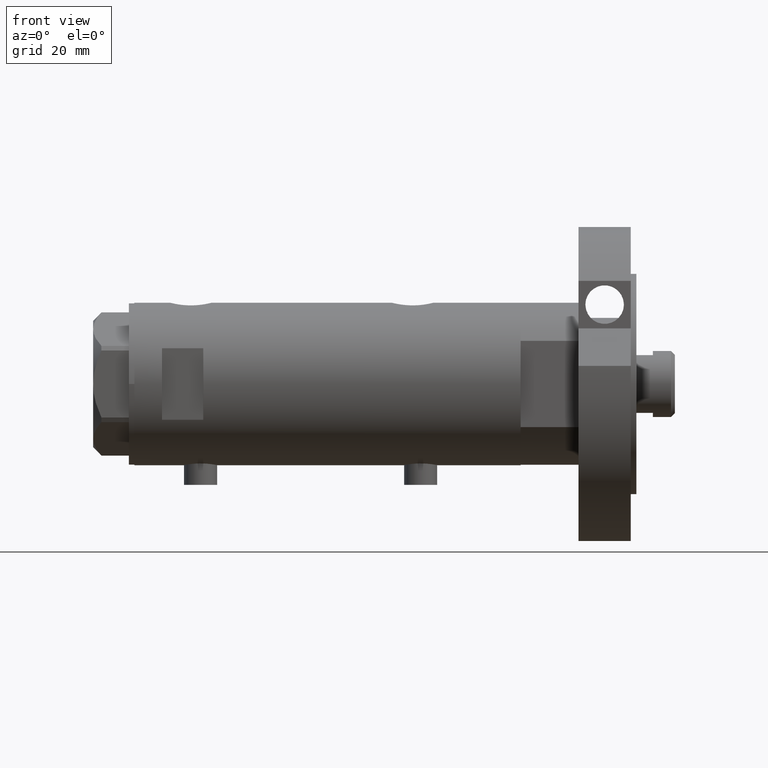
[diagram: clean part render]
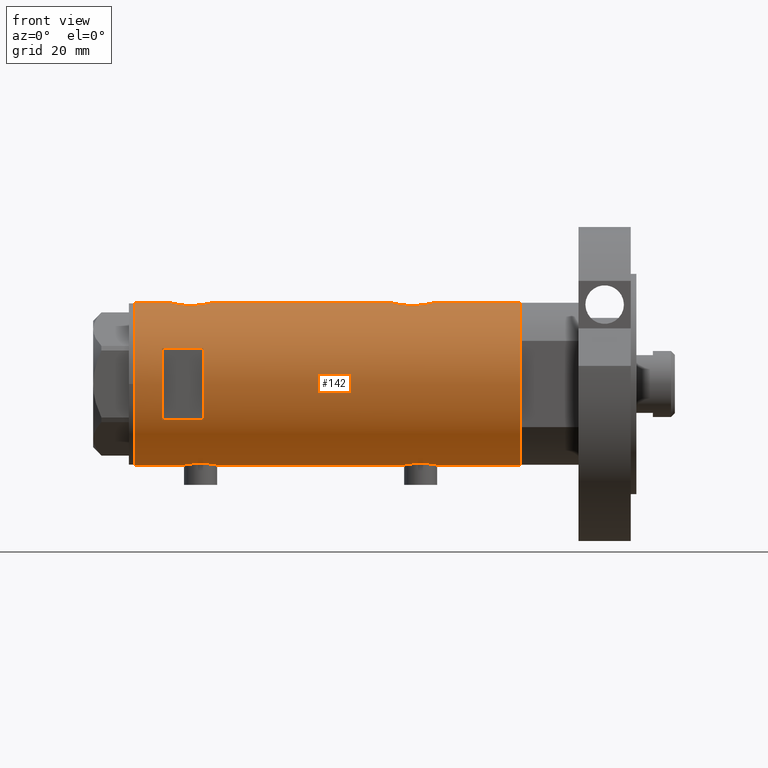
[diagram: same view with one face highlighted and labeled with its STEP entity id]
A machine part, front view. The second image highlights one B-rep face of the part: STEP entity #142.
In plain terms, the highlighted cylindrical surface (partial cylindrical patch) has radius 29.5 mm, axis along (-1, -0, 0).
Its self-contained STEP definition (entity closure, byte-faithful):
#8 = DIRECTION ( 'NONE',  ( 0.000000000000000000, 0.000000000000000000, 1.000000000000000000 ) ) ;
#13 = EDGE_LOOP ( 'NONE', ( #5998, #6013, #404, #3155, #5965, #733, #785, #2132, #2448, #4580, #1994, #4104 ) ) ;
#24 = CARTESIAN_POINT ( 'NONE',  ( 29.08294968506023537, -4.955368226349206040, 55.25096718198464885 ) ) ;
#37 = CARTESIAN_POINT ( 'NONE',  ( -28.91427970886710597, -5.849862889315913250, 43.89006866871147849 ) ) ;
#47 = CARTESIAN_POINT ( 'NONE',  ( 28.86327882047615034, -6.097569254709688913, 53.97367090911448173 ) ) ;
#53 = CARTESIAN_POINT ( 'NONE',  ( -29.46613381094001483, -1.427468570127968350, -27.71172459459601001 ) ) ;
#76 = DIRECTION ( 'NONE',  ( -1.000000000000000000, 0.000000000000000000, 0.000000000000000000 ) ) ;
#77 = CARTESIAN_POINT ( 'NONE',  ( 28.89374408016308848, -5.952042782108791563, 54.16984537025963675 ) ) ;
#113 = VERTEX_POINT ( 'NONE', #5678 ) ;
#114 = CARTESIAN_POINT ( 'NONE',  ( 28.54678862679669038, -7.438514536388029619, 50.58958274320788462 ) ) ;
#116 = VERTEX_POINT ( 'NONE', #3322 ) ;
#119 = CARTESIAN_POINT ( 'NONE',  ( -29.05872136210574297, -5.084685578900223213, -30.15990008091241137 ) ) ;
#142 = ADVANCED_FACE ( 'NONE', ( #2982, #5311 ), #1135, .T. ) ;
#177 = CARTESIAN_POINT ( 'NONE',  ( 28.53070445389874976, -7.499926890973428684, 49.84953420512916722 ) ) ;
#185 = CARTESIAN_POINT ( 'NONE',  ( 0.000000000000000000, 0.000000000000000000, 60.09999999999998721 ) ) ;
#188 = CARTESIAN_POINT ( 'NONE',  ( 28.54347630091234223, -7.451827970232788978, -31.88056781783958726 ) ) ;
#206 = CARTESIAN_POINT ( 'NONE',  ( 28.77424839213763264, -6.509286280845835826, 45.84218748394042109 ) ) ;
#215 = CARTESIAN_POINT ( 'NONE',  ( -29.50000000000000355, -1.251314770453635394E-15, 52.34999999999999432 ) ) ;
#218 = CARTESIAN_POINT ( 'NONE',  ( 28.77424839213764329, -6.509286280845839379, -34.65781251605954338 ) ) ;
#226 = CARTESIAN_POINT ( 'NONE',  ( -29.43130053621386821, -2.021711243143695214, 52.01755045960180723 ) ) ;
#249 = CARTESIAN_POINT ( 'NONE',  ( 29.08168479815707386, -4.954011967599716293, -36.53627368515268614 ) ) ;
#287 = CARTESIAN_POINT ( 'NONE',  ( -28.91427970886710597, -5.849862889315918579, -36.00993133128850587 ) ) ;
#300 = B_SPLINE_CURVE_WITH_KNOTS ( 'NONE', 3,
 ( #1898, #519, #4187, #6080, #5247, #2903, #4245, #3314, #4778, #4272, #24, #5733, #5670, #77, #47, #4804, #5211, #3941, #3901, #3477, #114, #5824, #177, #2523, #5398, #4899, #5370, #1998, #206, #2024, #1583, #5760, #1513, #4338, #4872, #4435, #2558, #1127, #2093, #5340, #5854, #3872, #2058, #619 ),
 .UNSPECIFIED., .F., .F.,
 ( 4, 2, 2, 2, 2, 2, 2, 2, 2, 2, 2, 2, 2, 2, 2, 2, 2, 2, 2, 2, 2, 4 ),
 ( 0.02354540741801906811, 0.02501659793198015777, 0.02648778844594124743, 0.02722338370292179052, 0.02795897895990233362, 0.02943016947386341287, 0.03016576473084396290, 0.03090135998782451293, 0.03237255050178562688, 0.03384374101574673388, 0.03457933627272730126, 0.03531493152970786864, 0.03678612204366901728, 0.03825731255763017286, 0.03972850307159132843, 0.04046409832857190969, 0.04119969358555249095, 0.04193528884253308608, 0.04267088409951366734, 0.04414207461347482986, 0.04561326512743600625, 0.04708445564139716877 ),
 .UNSPECIFIED. ) ;
#323 = CARTESIAN_POINT ( 'NONE',  ( -29.33428005013169582, -3.127775714777724758, -39.21493203872592659 ) ) ;
#340 = EDGE_CURVE ( 'NONE', #6073, #535, #300, .T. ) ;
#343 = CARTESIAN_POINT ( 'NONE',  ( -28.84137202824162216, -6.198846007008988579, -34.62388261123872724 ) ) ;
#404 = ORIENTED_EDGE ( 'NONE', *, *, #3782, .T. ) ;
#440 = CARTESIAN_POINT ( 'NONE',  ( 12.96148139681573319, -26.49999999999998934, 45.09999999999998721 ) ) ;
#455 = CARTESIAN_POINT ( 'NONE',  ( -28.83034328164762528, -6.249904501012243152, -34.00914539564058714 ) ) ;
#457 = VECTOR ( 'NONE', #5287, 1000.000000000000000 ) ;
#493 = CARTESIAN_POINT ( 'NONE',  ( -29.50000000000000355, 3.612708057484692393E-15, -70.09999999999999432 ) ) ;
#519 = CARTESIAN_POINT ( 'NONE',  ( 29.50000000000001066, -0.4905639552620955079, 57.10000000000000142 ) ) ;
#535 = VERTEX_POINT ( 'NONE', #4228 ) ;
#587 = CARTESIAN_POINT ( 'NONE',  ( -29.49128673965871883, -0.8227026017531489099, -27.59075558927904126 ) ) ;
#601 = CARTESIAN_POINT ( 'NONE',  ( -29.12379578281188230, -4.705261494361425711, 41.96612042279722488 ) ) ;
#614 = B_SPLINE_CURVE_WITH_KNOTS ( 'NONE', 3,
 ( #3955, #1594, #1136, #3487, #5379, #630, #4879, #2570, #2504, #2034, #4377, #5351, #4854, #3456, #5801, #3915, #4411, #1110, #657, #3986, #1559, #3010, #2534, #4909, #188, #5838, #689, #4446, #218, #2100, #5864, #2155, #5956, #3605, #249, #3106, #2188, #1256, #3579, #5037, #1651, #2675, #4537, #4564 ),
 .UNSPECIFIED., .F., .F.,
 ( 4, 2, 2, 2, 2, 2, 2, 2, 2, 2, 2, 2, 2, 2, 2, 2, 2, 2, 2, 2, 2, 4 ),
 ( 0.02354540741801906117, 0.02501659793198018553, 0.02648778844594131335, 0.02722338370292187726, 0.02795897895990244117, 0.02943016947386356552, 0.03016576473084412943, 0.03090135998782469334, 0.03237255050178582116, 0.03384374101574694205, 0.03457933627272750943, 0.03531493152970806987, 0.03678612204366919769, 0.03825731255763031857, 0.03972850307159145333, 0.04046409832857202071, 0.04119969358555258809, 0.04193528884253315547, 0.04267088409951372979, 0.04414207461347487149, 0.04561326512743601319, 0.04708445564139715489 ),
 .UNSPECIFIED. ) ;
#619 = CARTESIAN_POINT ( 'NONE',  ( 29.50000000000000355, -1.363453657738827866E-15, 42.09999999999999432 ) ) ;
#630 = CARTESIAN_POINT ( 'NONE',  ( 29.33743940633120673, -3.100990836771689629, -24.06672487560934925 ) ) ;
#657 = CARTESIAN_POINT ( 'NONE',  ( 28.59337635119608123, -7.258007499531540674, -28.94783774348637806 ) ) ;
#689 = CARTESIAN_POINT ( 'NONE',  ( 28.62983003203746080, -7.114781472982439681, -33.32273058853736813 ) ) ;
#695 = CARTESIAN_POINT ( 'NONE',  ( -28.87288655002253179, -6.050870399762844798, 47.71750540721806289 ) ) ;
#733 = ORIENTED_EDGE ( 'NONE', *, *, #340, .F. ) ;
#741 = CARTESIAN_POINT ( 'NONE',  ( 0.000000000000000000, 0.000000000000000000, -70.09999999999999432 ) ) ;
#747 = CARTESIAN_POINT ( 'NONE',  ( -29.50000000000000355, 3.612706708267620518E-15, 39.84999999999999432 ) ) ;
#748 = CARTESIAN_POINT ( 'NONE',  ( -28.99772237063717739, -5.425436006677730738, 49.22962674552640294 ) ) ;
#785 = ORIENTED_EDGE ( 'NONE', *, *, #5462, .T. ) ;
#788 = CARTESIAN_POINT ( 'NONE',  ( -29.50000000000001421, -0.4084468586314303207, -40.05000000000001847 ) ) ;
#790 = AXIS2_PLACEMENT_3D ( 'NONE', #2389, #3870, #76 ) ;
#889 = CARTESIAN_POINT ( 'NONE',  ( 29.50000000000000355, -8.867894669064240341E-21, -23.39999999999999147 ) ) ;
#936 = EDGE_CURVE ( 'NONE', #3677, #535, #3858, .T. ) ;
#946 = CARTESIAN_POINT ( 'NONE',  ( -28.87288655002253890, -6.050870399762843022, -32.18249459278194990 ) ) ;
#951 = VERTEX_POINT ( 'NONE', #5717 ) ;
#961 = CARTESIAN_POINT ( 'NONE',  ( -29.07948744859177026, -4.968520850090763830, 42.28663632621106672 ) ) ;
#964 = VECTOR ( 'NONE', #5859, 1000.000000000000000 ) ;
#1021 = CARTESIAN_POINT ( 'NONE',  ( -29.50000000000000355, 3.612708057484692393E-15, -70.09999999999999432 ) ) ;
#1109 = CARTESIAN_POINT ( 'NONE',  ( -29.50000000000000355, 3.612706708236066082E-15, -40.05000000000000426 ) ) ;
#1110 = CARTESIAN_POINT ( 'NONE',  ( 28.62986945670068195, -7.114680680403731472, -28.47606223993307850 ) ) ;
#1127 = CARTESIAN_POINT ( 'NONE',  ( 29.26166309680877475, -3.765013078516705303, 43.09489767946936922 ) ) ;
#1135 = CYLINDRICAL_SURFACE ( 'NONE', #5093, 29.50000000000000355 ) ;
#1136 = CARTESIAN_POINT ( 'NONE',  ( 29.48775985681159284, -0.9798361908152550814, -23.44769556118673037 ) ) ;
#1138 = VERTEX_POINT ( 'NONE', #2298 ) ;
#1194 = EDGE_CURVE ( 'NONE', #951, #1820, #1733, .T. ) ;
#1236 = CARTESIAN_POINT ( 'NONE',  ( -29.12311479234994849, -4.702282052053736727, 50.22223528886483734 ) ) ;
#1256 = CARTESIAN_POINT ( 'NONE',  ( 29.26166309680877831, -3.765013078516714629, -37.40510232053061657 ) ) ;
#1269 = CARTESIAN_POINT ( 'NONE',  ( -28.96147498926091757, -5.613273026676372623, -36.57892698342578086 ) ) ;
#1323 = VERTEX_POINT ( 'NONE', #1913 ) ;
#1399 = CARTESIAN_POINT ( 'NONE',  ( 29.50000000000000355, 0.000000000000000000, -70.09999999999999432 ) ) ;
#1414 = CARTESIAN_POINT ( 'NONE',  ( -29.21108587560691205, -4.128853169727746852, 41.39032723090409860 ) ) ;
#1461 = CARTESIAN_POINT ( 'NONE',  ( -29.21016169868139656, -4.135295259288787939, -29.09609911913490876 ) ) ;
#1501 = CARTESIAN_POINT ( 'NONE',  ( -28.96147498926091757, -5.613273026676365518, 43.32107301657420351 ) ) ;
#1513 = CARTESIAN_POINT ( 'NONE',  ( 28.98740664105171305, -5.478212189394655596, 44.47180483814204877 ) ) ;
#1516 = CARTESIAN_POINT ( 'NONE',  ( -29.25361239466581154, -3.820294933898102485, -28.83642010285960211 ) ) ;
#1517 = LINE ( 'NONE', #3412, #964 ) ;
#1531 = AXIS2_PLACEMENT_3D ( 'NONE', #185, #2068, #3951 ) ;
#1559 = CARTESIAN_POINT ( 'NONE',  ( 28.54678862679669038, -7.438514536388029619, -29.91041725679210472 ) ) ;
#1583 = CARTESIAN_POINT ( 'NONE',  ( 28.89374847711160399, -5.952001739005051917, 45.03016018920362740 ) ) ;
#1593 = DIRECTION ( 'NONE',  ( 0.000000000000000000, 0.000000000000000000, 1.000000000000000000 ) ) ;
#1594 = CARTESIAN_POINT ( 'NONE',  ( 29.50000000000000711, -0.4905639552620933430, -23.40000000000000213 ) ) ;
#1599 = EDGE_LOOP ( 'NONE', ( #5803, #4787, #5289, #3500 ) ) ;
#1626 = CARTESIAN_POINT ( 'NONE',  ( -29.46613381094000417, -1.427468570127970349, 52.18827540540396370 ) ) ;
#1651 = CARTESIAN_POINT ( 'NONE',  ( 29.43916859571211120, -1.954329820671501183, -38.15764479242086793 ) ) ;
#1670 = DIRECTION ( 'NONE',  ( 0.000000000000000000, 0.000000000000000000, 1.000000000000000000 ) ) ;
#1691 = CARTESIAN_POINT ( 'NONE',  ( -28.83034328164762172, -6.249904501012241376, 45.89085460435939723 ) ) ;
#1733 = CIRCLE ( 'NONE', #1531, 29.50000000000000355 ) ;
#1750 = CARTESIAN_POINT ( 'NONE',  ( -28.83260549167351883, -6.239494599049531409, -34.21615084301799214 ) ) ;
#1757 = DIRECTION ( 'NONE',  ( 1.000000000000000000, 0.000000000000000000, 0.000000000000000000 ) ) ;
#1820 = VERTEX_POINT ( 'NONE', #2004 ) ;
#1887 = CARTESIAN_POINT ( 'NONE',  ( -29.43333839972901345, -2.017691896334574686, 40.17064010952159236 ) ) ;
#1898 = CARTESIAN_POINT ( 'NONE',  ( 29.50000000000000355, -8.867894669064240341E-21, 57.09999999999999432 ) ) ;
#1913 = CARTESIAN_POINT ( 'NONE',  ( -29.50000000000000355, 7.333735512235174214E-18, -27.54999999999999361 ) ) ;
#1994 = ORIENTED_EDGE ( 'NONE', *, *, #2405, .F. ) ;
#1998 = CARTESIAN_POINT ( 'NONE',  ( 28.72051071455671334, -6.739402597165489617, 46.27281026296244448 ) ) ;
#2002 = CARTESIAN_POINT ( 'NONE',  ( -29.37136442049237317, -2.777615426151016642, -28.18634887377885079 ) ) ;
#2004 = CARTESIAN_POINT ( 'NONE',  ( -12.96148139681573319, -26.49999999999998934, 60.09999999999998721 ) ) ;
#2024 = CARTESIAN_POINT ( 'NONE',  ( 28.86290657878785737, -6.099358034152089658, 45.22869329957392637 ) ) ;
#2034 = CARTESIAN_POINT ( 'NONE',  ( 29.14531914445118943, -4.579221598645966118, -24.94009767007192480 ) ) ;
#2058 = CARTESIAN_POINT ( 'NONE',  ( 29.50000000000000711, -0.4976091310423220726, 42.10000000000000142 ) ) ;
#2068 = DIRECTION ( 'NONE',  ( -0.000000000000000000, 0.000000000000000000, -1.000000000000000000 ) ) ;
#2078 = CARTESIAN_POINT ( 'NONE',  ( -29.33479068874800788, -3.136645782783861858, 51.52155254614470437 ) ) ;
#2093 = CARTESIAN_POINT ( 'NONE',  ( 29.31438578683259522, -3.335040812377227937, 42.86452723156225630 ) ) ;
#2100 = CARTESIAN_POINT ( 'NONE',  ( 28.86290657878786448, -6.099358034152092323, -35.27130670042605232 ) ) ;
#2113 = CARTESIAN_POINT ( 'NONE',  ( 29.50000000000000355, 0.000000000000000000, -70.09999999999999432 ) ) ;
#2131 = CARTESIAN_POINT ( 'NONE',  ( -28.89828397447512032, -5.929977241120604425, 48.11611952241996448 ) ) ;
#2132 = ORIENTED_EDGE ( 'NONE', *, *, #4093, .F. ) ;
#2152 = VECTOR ( 'NONE', #3576, 1000.000000000000000 ) ;
#2155 = CARTESIAN_POINT ( 'NONE',  ( 28.95592074821772854, -5.641779806288297117, -35.84773495802029686 ) ) ;
#2188 = CARTESIAN_POINT ( 'NONE',  ( 29.17410189149616428, -4.377709617224029515, -36.99475827476019418 ) ) ;
#2199 = CARTESIAN_POINT ( 'NONE',  ( -29.07948744859177026, -4.968520850090774488, -37.61336367378891055 ) ) ;
#2290 = DIRECTION ( 'NONE',  ( 0.000000000000000000, 0.000000000000000000, 1.000000000000000000 ) ) ;
#2298 = CARTESIAN_POINT ( 'NONE',  ( -12.96148139681573319, -26.49999999999998934, 45.09999999999998721 ) ) ;
#2328 = CARTESIAN_POINT ( 'NONE',  ( -28.83028160285196151, -6.250189016175733414, -33.39032996785321217 ) ) ;
#2356 = EDGE_CURVE ( 'NONE', #116, #3654, #4725, .T. ) ;
#2369 = DIRECTION ( 'NONE',  ( 0.000000000000000000, 0.000000000000000000, 1.000000000000000000 ) ) ;
#2389 = CARTESIAN_POINT ( 'NONE',  ( 0.000000000000000000, 0.000000000000000000, 45.09999999999998721 ) ) ;
#2405 = EDGE_CURVE ( 'NONE', #1323, #3862, #1517, .T. ) ;
#2448 = ORIENTED_EDGE ( 'NONE', *, *, #2356, .F. ) ;
#2468 = CARTESIAN_POINT ( 'NONE',  ( -28.96072448608914485, -5.617106371651691354, -31.02917268339557211 ) ) ;
#2504 = CARTESIAN_POINT ( 'NONE',  ( 29.23250901027695647, -3.968959760999265729, -24.53153982712338532 ) ) ;
#2510 = CARTESIAN_POINT ( 'NONE',  ( -29.37055817176825556, -2.766456155496576752, 40.49186392411088775 ) ) ;
#2520 = EDGE_CURVE ( 'NONE', #1820, #1138, #3191, .T. ) ;
#2523 = CARTESIAN_POINT ( 'NONE',  ( 28.53064705443910043, -7.500145243772282200, 49.10755296708880735 ) ) ;
#2533 = DIRECTION ( 'NONE',  ( 1.000000000000000000, 0.000000000000000000, 0.000000000000000000 ) ) ;
#2534 = CARTESIAN_POINT ( 'NONE',  ( 28.53070445389874621, -7.499926890973427795, -30.65046579487083278 ) ) ;
#2540 = CARTESIAN_POINT ( 'NONE',  ( -28.84137202824161861, -6.198846007008985914, 45.27611738876124292 ) ) ;
#2558 = CARTESIAN_POINT ( 'NONE',  ( 29.17410189149616428, -4.377709617224021521, 43.50524172523978450 ) ) ;
#2570 = CARTESIAN_POINT ( 'NONE',  ( 29.26065241255351879, -3.756597382275439045, -24.40395565180809712 ) ) ;
#2586 = LINE ( 'NONE', #2113, #4536 ) ;
#2604 = CARTESIAN_POINT ( 'NONE',  ( -28.89999183068148625, -5.919812056825914937, 44.08499761164583219 ) ) ;
#2631 = CARTESIAN_POINT ( 'NONE',  ( -29.50000000000000355, 3.612706708236066082E-15, -40.05000000000000426 ) ) ;
#2653 = CIRCLE ( 'NONE', #5029, 29.50000000000000355 ) ;
#2656 = CARTESIAN_POINT ( 'NONE',  ( -29.21016169868140011, -4.135295259288787051, 50.80390088086508626 ) ) ;
#2660 = CARTESIAN_POINT ( 'NONE',  ( -29.45797511864983065, -1.625450914296656890, -39.84905127530045377 ) ) ;
#2675 = CARTESIAN_POINT ( 'NONE',  ( 29.48742104091791916, -0.9879539515379959225, -38.35095698353976701 ) ) ;
#2686 = CARTESIAN_POINT ( 'NONE',  ( -28.87532468301957422, -6.038983942005352823, -35.42329367688535768 ) ) ;
#2711 = CARTESIAN_POINT ( 'NONE',  ( -29.21108587560690495, -4.128853169727752181, -38.50967276909590709 ) ) ;
#2724 = LINE ( 'NONE', #3284, #5215 ) ;
#2859 = DIRECTION ( 'NONE',  ( 0.000000000000000000, 0.000000000000000000, 1.000000000000000000 ) ) ;
#2903 = CARTESIAN_POINT ( 'NONE',  ( 29.33743940633121028, -3.100990836771690073, 56.43327512439066140 ) ) ;
#2915 = EDGE_CURVE ( 'NONE', #5282, #951, #2724, .T. ) ;
#2921 = CARTESIAN_POINT ( 'NONE',  ( -29.38738983524999782, -2.582042051636494584, 40.40464828404620334 ) ) ;
#2982 = FACE_OUTER_BOUND ( 'NONE', #13, .T. ) ;
#2987 = CARTESIAN_POINT ( 'NONE',  ( -28.83028160285195796, -6.250189016175734302, 46.50967003214677220 ) ) ;
#3010 = CARTESIAN_POINT ( 'NONE',  ( 28.53399451186755442, -7.487442594623181513, -30.40102514498886777 ) ) ;
#3057 = EDGE_CURVE ( 'NONE', #1138, #5282, #3733, .T. ) ;
#3092 = CARTESIAN_POINT ( 'NONE',  ( -29.37055817176824846, -2.766456155496577640, -39.40813607588911083 ) ) ;
#3106 = CARTESIAN_POINT ( 'NONE',  ( 29.14351131874356682, -4.576283785862464981, -36.84705324848519581 ) ) ;
#3115 = CARTESIAN_POINT ( 'NONE',  ( -29.14490888978863481, -4.565669626908227308, 50.37298179876215443 ) ) ;
#3150 = CARTESIAN_POINT ( 'NONE',  ( -28.89999183068148270, -5.919812056825918489, -35.81500238835415928 ) ) ;
#3155 = ORIENTED_EDGE ( 'NONE', *, *, #5056, .F. ) ;
#3158 = VERTEX_POINT ( 'NONE', #4075 ) ;
#3191 = LINE ( 'NONE', #4042, #2152 ) ;
#3208 = CARTESIAN_POINT ( 'NONE',  ( 0.000000000000000000, 0.000000000000000000, -70.09999999999999432 ) ) ;
#3270 = EDGE_CURVE ( 'NONE', #4179, #5248, #6061, .T. ) ;
#3284 = CARTESIAN_POINT ( 'NONE',  ( 12.96148139681573319, -26.49999999999999645, -70.09999999999999432 ) ) ;
#3288 = DIRECTION ( 'NONE',  ( 0.000000000000000000, 0.000000000000000000, 1.000000000000000000 ) ) ;
#3314 = CARTESIAN_POINT ( 'NONE',  ( 29.26065241255352589, -3.756597382275444819, 56.09604434819189578 ) ) ;
#3317 = CARTESIAN_POINT ( 'NONE',  ( -29.12311479234994138, -4.702282052053733175, -29.67776471113516479 ) ) ;
#3322 = CARTESIAN_POINT ( 'NONE',  ( -29.50000000000000355, -1.251314770453635394E-15, 52.34999999999999432 ) ) ;
#3356 = CARTESIAN_POINT ( 'NONE',  ( -29.41741605749266597, -2.213861184585011355, -27.95168825548629243 ) ) ;
#3409 = CARTESIAN_POINT ( 'NONE',  ( -29.50000000000001066, -0.4141077724969902119, -27.55000000000000071 ) ) ;
#3412 = CARTESIAN_POINT ( 'NONE',  ( -29.50000000000000355, 3.612708057484692393E-15, -70.09999999999999432 ) ) ;
#3423 = CARTESIAN_POINT ( 'NONE',  ( -29.50000000000000355, 3.612706708267620518E-15, 39.84999999999999432 ) ) ;
#3452 = CARTESIAN_POINT ( 'NONE',  ( 0.000000000000000000, 0.000000000000000000, 70.09999999999999432 ) ) ;
#3456 = CARTESIAN_POINT ( 'NONE',  ( 28.89374408016309914, -5.952042782108792451, -26.33015462974034193 ) ) ;
#3477 = CARTESIAN_POINT ( 'NONE',  ( 28.55627543367308618, -7.402134446380870259, 50.83219650318237370 ) ) ;
#3487 = CARTESIAN_POINT ( 'NONE',  ( 29.43922820968271381, -1.954457150219035322, -23.64210652754224284 ) ) ;
#3500 = ORIENTED_EDGE ( 'NONE', *, *, #2915, .F. ) ;
#3525 = CARTESIAN_POINT ( 'NONE',  ( -29.49128673965871172, -0.8227026017531495761, 52.30924441072095021 ) ) ;
#3576 = DIRECTION ( 'NONE',  ( -0.000000000000000000, -0.000000000000000000, -1.000000000000000000 ) ) ;
#3579 = CARTESIAN_POINT ( 'NONE',  ( 29.31438578683260232, -3.335040812377227049, -37.63547276843772238 ) ) ;
#3585 = CARTESIAN_POINT ( 'NONE',  ( -29.08006251441183210, -4.961575945539727250, 49.90618502052525685 ) ) ;
#3601 = CARTESIAN_POINT ( 'NONE',  ( 29.50000000000000355, -8.867894669064240341E-21, 57.09999999999999432 ) ) ;
#3605 = CARTESIAN_POINT ( 'NONE',  ( 29.05028789344174456, -5.134328181356795362, -36.37246457606265437 ) ) ;
#3637 = VECTOR ( 'NONE', #8, 1000.000000000000000 ) ;
#3654 = VERTEX_POINT ( 'NONE', #5095 ) ;
#3677 = VERTEX_POINT ( 'NONE', #889 ) ;
#3733 = CIRCLE ( 'NONE', #790, 29.50000000000000355 ) ;
#3782 = EDGE_CURVE ( 'NONE', #3158, #113, #4244, .T. ) ;
#3792 = CARTESIAN_POINT ( 'NONE',  ( -29.50000000000000355, 3.612708057484692393E-15, -70.09999999999999432 ) ) ;
#3828 = CARTESIAN_POINT ( 'NONE',  ( 29.50000000000000355, 0.000000000000000000, -70.09999999999999432 ) ) ;
#3858 = LINE ( 'NONE', #3828, #457 ) ;
#3859 = CARTESIAN_POINT ( 'NONE',  ( -29.31475612970062983, -3.305202271067057218, 40.79152131156142502 ) ) ;
#3862 = VERTEX_POINT ( 'NONE', #747 ) ;
#3870 = DIRECTION ( 'NONE',  ( 0.000000000000000000, 0.000000000000000000, 1.000000000000000000 ) ) ;
#3872 = CARTESIAN_POINT ( 'NONE',  ( 29.48742104091792982, -0.9879539515379943682, 42.14904301646024720 ) ) ;
#3887 = CARTESIAN_POINT ( 'NONE',  ( -29.50000000000000711, -0.4084468586314294880, 39.85000000000000853 ) ) ;
#3901 = CARTESIAN_POINT ( 'NONE',  ( 28.59337635119608123, -7.258007499531542450, 51.55216225651361128 ) ) ;
#3905 = CARTESIAN_POINT ( 'NONE',  ( -29.50000000000000355, 7.333735512235174214E-18, -27.54999999999999361 ) ) ;
#3915 = CARTESIAN_POINT ( 'NONE',  ( 28.77541267587658069, -6.504036106227637504, -27.13371449864084539 ) ) ;
#3922 = VECTOR ( 'NONE', #2369, 1000.000000000000000 ) ;
#3923 = CARTESIAN_POINT ( 'NONE',  ( -29.25361239466581154, -3.820294933898098044, 51.06357989714039292 ) ) ;
#3941 = CARTESIAN_POINT ( 'NONE',  ( 28.62986945670068550, -7.114680680403729696, 52.02393776006690729 ) ) ;
#3951 = DIRECTION ( 'NONE',  ( 1.000000000000000000, 0.000000000000000000, 0.000000000000000000 ) ) ;
#3955 = CARTESIAN_POINT ( 'NONE',  ( 29.50000000000000355, -8.867894669064240341E-21, -23.39999999999999147 ) ) ;
#3961 = CARTESIAN_POINT ( 'NONE',  ( -29.37136442049237317, -2.777615426151012201, 51.71365112622115845 ) ) ;
#3986 = CARTESIAN_POINT ( 'NONE',  ( 28.55627543367308618, -7.402134446380870259, -29.66780349681762274 ) ) ;
#3992 = CARTESIAN_POINT ( 'NONE',  ( -29.45566469296799283, -1.628675872921102163, 52.13756032628675996 ) ) ;
#4042 = CARTESIAN_POINT ( 'NONE',  ( -12.96148139681573319, -26.49999999999999645, -70.09999999999999432 ) ) ;
#4052 = CARTESIAN_POINT ( 'NONE',  ( -29.05872136210575007, -5.084685578900224989, 49.74009991908757655 ) ) ;
#4075 = CARTESIAN_POINT ( 'NONE',  ( 29.50000000000000355, 0.000000000000000000, -70.09999999999999432 ) ) ;
#4093 = EDGE_CURVE ( 'NONE', #3654, #5508, #5817, .T. ) ;
#4104 = ORIENTED_EDGE ( 'NONE', *, *, #5877, .F. ) ;
#4148 = B_SPLINE_CURVE_WITH_KNOTS ( 'NONE', 3,
 ( #3423, #3887, #4860, #5199, #1887, #2921, #2510, #4794, #3859, #5658, #1414, #601, #961, #5748, #1501, #37, #2604, #4916, #5941, #2540, #4509, #1691, #2987, #5446, #695, #2131, #4883, #748, #4052, #3585, #1236, #3115, #2656, #3923, #2078, #3961, #4454, #226, #3992, #1626, #3525, #5964, #215 ),
 .UNSPECIFIED., .F., .F.,
 ( 4, 2, 2, 2, 2, 2, 2, 2, 2, 1, 2, 2, 2, 2, 2, 2, 2, 2, 2, 2, 2, 4 ),
 ( 0.01959598605283711242, 0.02082041500883366134, 0.02204484396483021025, 0.02265705844282848644, 0.02326927292082675916, 0.02449370187682329766, 0.02571813083281983617, 0.02694255978881637467, 0.02755477426681463352, 0.02816698874481289236, 0.02877920322281115467, 0.02939141770080941352, 0.03061584665680593120, 0.03184027561280244889, 0.03306470456879896658, 0.03367691904679723236, 0.03428913352479548426, 0.03551356248079202277, 0.03673799143678855433, 0.03735020591478682705, 0.03796242039278509284, 0.03918684934878162440 ),
 .UNSPECIFIED. ) ;
#4179 = VERTEX_POINT ( 'NONE', #1021 ) ;
#4182 = EDGE_CURVE ( 'NONE', #3862, #116, #4148, .T. ) ;
#4187 = CARTESIAN_POINT ( 'NONE',  ( 29.48775985681159284, -0.9798361908152568578, 57.05230443881323765 ) ) ;
#4218 = CARTESIAN_POINT ( 'NONE',  ( -28.83909499632370199, -6.209928350489661852, -32.98382218917040376 ) ) ;
#4227 = VECTOR ( 'NONE', #3288, 1000.000000000000000 ) ;
#4228 = CARTESIAN_POINT ( 'NONE',  ( 29.50000000000000355, -1.363453657738827866E-15, 42.09999999999999432 ) ) ;
#4244 = LINE ( 'NONE', #1399, #4227 ) ;
#4245 = CARTESIAN_POINT ( 'NONE',  ( 29.31311917412636348, -3.322476152549152406, 56.32842985264294100 ) ) ;
#4247 = CARTESIAN_POINT ( 'NONE',  ( -29.14490888978862415, -4.565669626908225531, -29.52701820123783705 ) ) ;
#4272 = CARTESIAN_POINT ( 'NONE',  ( 29.14531914445117522, -4.579221598645967006, 55.55990232992807876 ) ) ;
#4306 = CARTESIAN_POINT ( 'NONE',  ( -29.33479068874800078, -3.136645782783866743, -28.37844745385530842 ) ) ;
#4338 = CARTESIAN_POINT ( 'NONE',  ( 29.05028789344173745, -5.134328181356786480, 44.12753542393733852 ) ) ;
#4341 = CARTESIAN_POINT ( 'NONE',  ( -28.89828397447512032, -5.929977241120605314, -31.78388047758002344 ) ) ;
#4377 = CARTESIAN_POINT ( 'NONE',  ( 29.08294968506023892, -4.955368226349206928, -25.24903281801533694 ) ) ;
#4411 = CARTESIAN_POINT ( 'NONE',  ( 28.72151714661536204, -6.735173278284146470, -27.56359529429124322 ) ) ;
#4435 = CARTESIAN_POINT ( 'NONE',  ( 29.14351131874355261, -4.576283785862462317, 43.65294675151479709 ) ) ;
#4446 = CARTESIAN_POINT ( 'NONE',  ( 28.72051071455672400, -6.739402597165488729, -34.22718973703751999 ) ) ;
#4454 = CARTESIAN_POINT ( 'NONE',  ( -29.41741605749266597, -2.213861184585005581, 51.94831174451368838 ) ) ;
#4509 = CARTESIAN_POINT ( 'NONE',  ( -28.83260549167351527, -6.239494599049529633, 45.68384915698199222 ) ) ;
#4513 = CARTESIAN_POINT ( 'NONE',  ( -28.99856997507319178, -5.420860550814445844, -36.93723012145799345 ) ) ;
#4536 = VECTOR ( 'NONE', #1670, 1000.000000000000000 ) ;
#4537 = CARTESIAN_POINT ( 'NONE',  ( 29.50000000000000711, -0.4976091310423219616, -38.39999999999999858 ) ) ;
#4550 = CARTESIAN_POINT ( 'NONE',  ( -29.38738983525000492, -2.582042051636506130, -39.49535171595380234 ) ) ;
#4564 = CARTESIAN_POINT ( 'NONE',  ( 29.50000000000000355, -2.068661527048439545E-15, -38.39999999999999147 ) ) ;
#4572 = CARTESIAN_POINT ( 'NONE',  ( -28.85437239305167267, -6.138402996999199779, -35.02756598756702999 ) ) ;
#4580 = ORIENTED_EDGE ( 'NONE', *, *, #4182, .F. ) ;
#4725 = LINE ( 'NONE', #493, #3922 ) ;
#4739 = AXIS2_PLACEMENT_3D ( 'NONE', #3452, #2859, #4760 ) ;
#4760 = DIRECTION ( 'NONE',  ( 1.000000000000000000, 0.000000000000000000, 0.000000000000000000 ) ) ;
#4778 = CARTESIAN_POINT ( 'NONE',  ( 29.23250901027695647, -3.968959760999266617, 55.96846017287659691 ) ) ;
#4787 = ORIENTED_EDGE ( 'NONE', *, *, #2520, .F. ) ;
#4794 = CARTESIAN_POINT ( 'NONE',  ( -29.33428005013170292, -3.127775714777720761, 40.68506796127406488 ) ) ;
#4804 = CARTESIAN_POINT ( 'NONE',  ( 28.77541267587658780, -6.504036106227640168, 53.36628550135916527 ) ) ;
#4854 = CARTESIAN_POINT ( 'NONE',  ( 28.95619957017311208, -5.640369376407877944, -25.95060273509822579 ) ) ;
#4860 = CARTESIAN_POINT ( 'NONE',  ( -29.49152014567325253, -0.8152473631539810528, 39.88964705166667812 ) ) ;
#4872 = CARTESIAN_POINT ( 'NONE',  ( 29.08168479815708451, -4.954011967599717181, 43.96372631484729965 ) ) ;
#4879 = CARTESIAN_POINT ( 'NONE',  ( 29.31311917412635992, -3.322476152549147521, -24.17157014735704834 ) ) ;
#4883 = CARTESIAN_POINT ( 'NONE',  ( -28.96072448608914485, -5.617106371651694907, 48.87082731660439805 ) ) ;
#4899 = CARTESIAN_POINT ( 'NONE',  ( 28.59279484545186989, -7.260293545345763100, 47.65593442015525483 ) ) ;
#4909 = CARTESIAN_POINT ( 'NONE',  ( 28.53064705443910754, -7.500145243772285752, -31.39244703291117133 ) ) ;
#4916 = CARTESIAN_POINT ( 'NONE',  ( -28.87532468301957067, -6.038983942005349270, 44.47670632311462668 ) ) ;
#4921 = CARTESIAN_POINT ( 'NONE',  ( 29.50000000000000355, 0.000000000000000000, 70.09999999999999432 ) ) ;
#4938 = B_SPLINE_CURVE_WITH_KNOTS ( 'NONE', 3,
 ( #2631, #788, #5967, #2660, #5186, #4550, #3092, #323, #4985, #5505, #2711, #5538, #2199, #4513, #1269, #287, #3150, #2686, #4572, #343, #1750, #455, #2328, #4218, #946, #4341, #2468, #5763, #119, #5216, #3317, #4247, #1461, #1516, #4306, #2002, #3356, #5275, #5251, #53, #587, #3409, #3905 ),
 .UNSPECIFIED., .F., .F.,
 ( 4, 2, 2, 2, 2, 2, 2, 2, 2, 1, 2, 2, 2, 2, 2, 2, 2, 2, 2, 2, 2, 4 ),
 ( 0.01959598605283711936, 0.02082041500883363358, 0.02204484396483014433, 0.02265705844282839970, 0.02326927292082665161, 0.02449370187682316583, 0.02571813083281968351, 0.02694255978881619773, 0.02755477426681446698, 0.02816698874481273623, 0.02877920322281100202, 0.02939141770080926780, 0.03061584665680580630, 0.03184027561280233787, 0.03306470456879888331, 0.03367691904679715603, 0.03428913352479542875, 0.03551356248079198807, 0.03673799143678854046, 0.03735020591478681318, 0.03796242039278509284, 0.03918684934878164522 ),
 .UNSPECIFIED. ) ;
#4985 = CARTESIAN_POINT ( 'NONE',  ( -29.31475612970063338, -3.305202271067065212, -39.10847868843855224 ) ) ;
#5029 = AXIS2_PLACEMENT_3D ( 'NONE', #3208, #5107, #1757 ) ;
#5037 = CARTESIAN_POINT ( 'NONE',  ( 29.40305664607912917, -2.432276947006150714, -38.01147801006585780 ) ) ;
#5056 = EDGE_CURVE ( 'NONE', #3677, #113, #614, .T. ) ;
#5093 = AXIS2_PLACEMENT_3D ( 'NONE', #741, #1593, #2533 ) ;
#5095 = CARTESIAN_POINT ( 'NONE',  ( -29.50000000000000355, 3.612708057484692393E-15, 70.09999999999999432 ) ) ;
#5107 = DIRECTION ( 'NONE',  ( 0.000000000000000000, 0.000000000000000000, 1.000000000000000000 ) ) ;
#5186 = CARTESIAN_POINT ( 'NONE',  ( -29.43333839972901700, -2.017691896334584900, -39.72935989047841332 ) ) ;
#5199 = CARTESIAN_POINT ( 'NONE',  ( -29.45797511864983420, -1.625450914296655336, 40.05094872469953060 ) ) ;
#5211 = CARTESIAN_POINT ( 'NONE',  ( 28.72151714661536204, -6.735173278284145582, 52.93640470570872480 ) ) ;
#5215 = VECTOR ( 'NONE', #2290, 1000.000000000000000 ) ;
#5216 = CARTESIAN_POINT ( 'NONE',  ( -29.08006251441182854, -4.961575945539725474, -29.99381497947475239 ) ) ;
#5247 = CARTESIAN_POINT ( 'NONE',  ( 29.40378957563275009, -2.423455993307766398, 56.71449460115983499 ) ) ;
#5248 = VERTEX_POINT ( 'NONE', #1109 ) ;
#5251 = CARTESIAN_POINT ( 'NONE',  ( -29.45566469296798218, -1.628675872921094170, -27.76243967371322796 ) ) ;
#5275 = CARTESIAN_POINT ( 'NONE',  ( -29.43130053621387532, -2.021711243143688552, -27.88244954039818779 ) ) ;
#5282 = VERTEX_POINT ( 'NONE', #440 ) ;
#5287 = DIRECTION ( 'NONE',  ( 0.000000000000000000, 0.000000000000000000, 1.000000000000000000 ) ) ;
#5289 = ORIENTED_EDGE ( 'NONE', *, *, #1194, .F. ) ;
#5305 = EDGE_CURVE ( 'NONE', #4179, #3158, #2653, .T. ) ;
#5311 = FACE_BOUND ( 'NONE', #1599, .T. ) ;
#5340 = CARTESIAN_POINT ( 'NONE',  ( 29.40305664607911140, -2.432276947006147605, 42.48852198993412088 ) ) ;
#5351 = CARTESIAN_POINT ( 'NONE',  ( 28.98816846638396427, -5.474212100855875285, -25.76747840116693666 ) ) ;
#5370 = CARTESIAN_POINT ( 'NONE',  ( 28.62983003203746080, -7.114781472982439681, 47.17726941146262476 ) ) ;
#5379 = CARTESIAN_POINT ( 'NONE',  ( 29.40378957563275009, -2.423455993307769063, -23.78550539884014725 ) ) ;
#5398 = CARTESIAN_POINT ( 'NONE',  ( 28.54347630091233867, -7.451827970232786313, 48.61943218216036655 ) ) ;
#5446 = CARTESIAN_POINT ( 'NONE',  ( -28.83909499632370199, -6.209928350489660964, 46.91617781082957350 ) ) ;
#5462 = EDGE_CURVE ( 'NONE', #6073, #5508, #2586, .T. ) ;
#5505 = CARTESIAN_POINT ( 'NONE',  ( -29.25427426731712188, -3.815048240656441880, -38.76740768153335637 ) ) ;
#5508 = VERTEX_POINT ( 'NONE', #4921 ) ;
#5538 = CARTESIAN_POINT ( 'NONE',  ( -29.12379578281188941, -4.705261494361431929, -37.93387957720273818 ) ) ;
#5658 = CARTESIAN_POINT ( 'NONE',  ( -29.25427426731712544, -3.815048240656436107, 41.13259231846663511 ) ) ;
#5670 = CARTESIAN_POINT ( 'NONE',  ( 28.95619957017310497, -5.640369376407877056, 54.54939726490174934 ) ) ;
#5678 = CARTESIAN_POINT ( 'NONE',  ( 29.50000000000000355, -2.068661527048439545E-15, -38.39999999999999147 ) ) ;
#5717 = CARTESIAN_POINT ( 'NONE',  ( 12.96148139681573319, -26.49999999999998934, 60.09999999999998721 ) ) ;
#5733 = CARTESIAN_POINT ( 'NONE',  ( 28.98816846638396072, -5.474212100855873508, 54.73252159883303136 ) ) ;
#5748 = CARTESIAN_POINT ( 'NONE',  ( -28.99856997507320244, -5.420860550814435186, 42.96276987854199092 ) ) ;
#5760 = CARTESIAN_POINT ( 'NONE',  ( 28.95592074821772854, -5.641779806288289123, 44.65226504197967472 ) ) ;
#5763 = CARTESIAN_POINT ( 'NONE',  ( -28.99772237063717739, -5.425436006677728962, -30.67037325447358143 ) ) ;
#5801 = CARTESIAN_POINT ( 'NONE',  ( 28.86327882047615390, -6.097569254709687137, -26.52632909088550051 ) ) ;
#5803 = ORIENTED_EDGE ( 'NONE', *, *, #3057, .F. ) ;
#5817 = CIRCLE ( 'NONE', #4739, 29.50000000000000355 ) ;
#5824 = CARTESIAN_POINT ( 'NONE',  ( 28.53399451186755442, -7.487442594623181513, 50.09897485501112868 ) ) ;
#5838 = CARTESIAN_POINT ( 'NONE',  ( 28.59279484545186989, -7.260293545345768429, -32.84406557984471675 ) ) ;
#5854 = CARTESIAN_POINT ( 'NONE',  ( 29.43916859571211120, -1.954329820671499407, 42.34235520757911075 ) ) ;
#5859 = DIRECTION ( 'NONE',  ( 0.000000000000000000, 0.000000000000000000, 1.000000000000000000 ) ) ;
#5864 = CARTESIAN_POINT ( 'NONE',  ( 28.89374847711160399, -5.952001739005060799, -35.46983981079634418 ) ) ;
#5877 = EDGE_CURVE ( 'NONE', #5248, #1323, #4938, .T. ) ;
#5941 = CARTESIAN_POINT ( 'NONE',  ( -28.85437274499025762, -6.138402965889059537, 44.87243403294918664 ) ) ;
#5956 = CARTESIAN_POINT ( 'NONE',  ( 28.98740664105172016, -5.478212189394663589, -36.02819516185791571 ) ) ;
#5964 = CARTESIAN_POINT ( 'NONE',  ( -29.49999999999999645, -0.4141077724969866036, 52.34999999999998721 ) ) ;
#5965 = ORIENTED_EDGE ( 'NONE', *, *, #936, .T. ) ;
#5967 = CARTESIAN_POINT ( 'NONE',  ( -29.49152014567324542, -0.8152473631539811638, -40.01035294833332046 ) ) ;
#5998 = ORIENTED_EDGE ( 'NONE', *, *, #3270, .F. ) ;
#6013 = ORIENTED_EDGE ( 'NONE', *, *, #5305, .T. ) ;
#6061 = LINE ( 'NONE', #3792, #3637 ) ;
#6073 = VERTEX_POINT ( 'NONE', #3601 ) ;
#6080 = CARTESIAN_POINT ( 'NONE',  ( 29.43922820968270671, -1.954457150219038208, 56.85789347245773229 ) ) ;